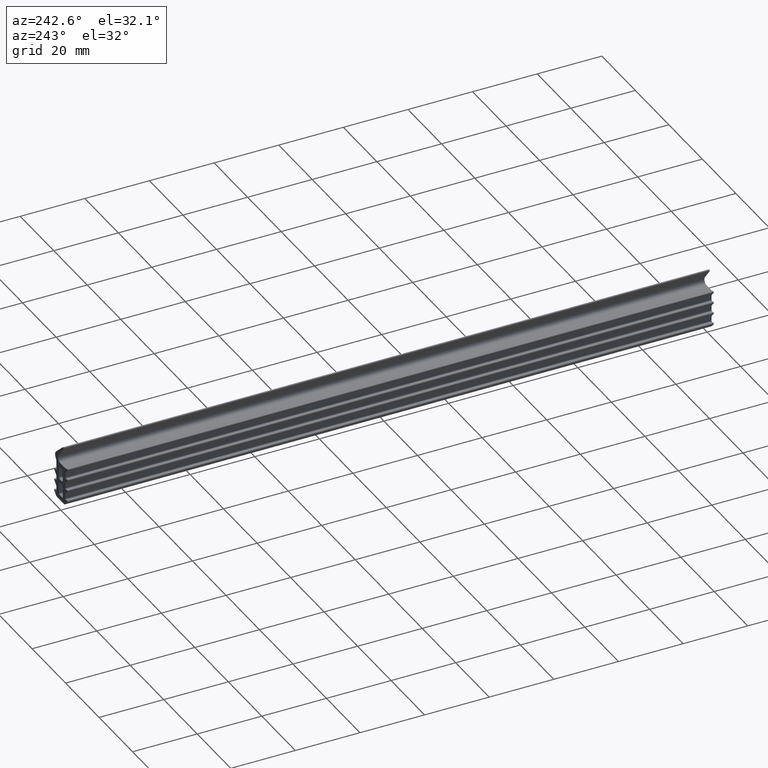
[diagram: clean part render]
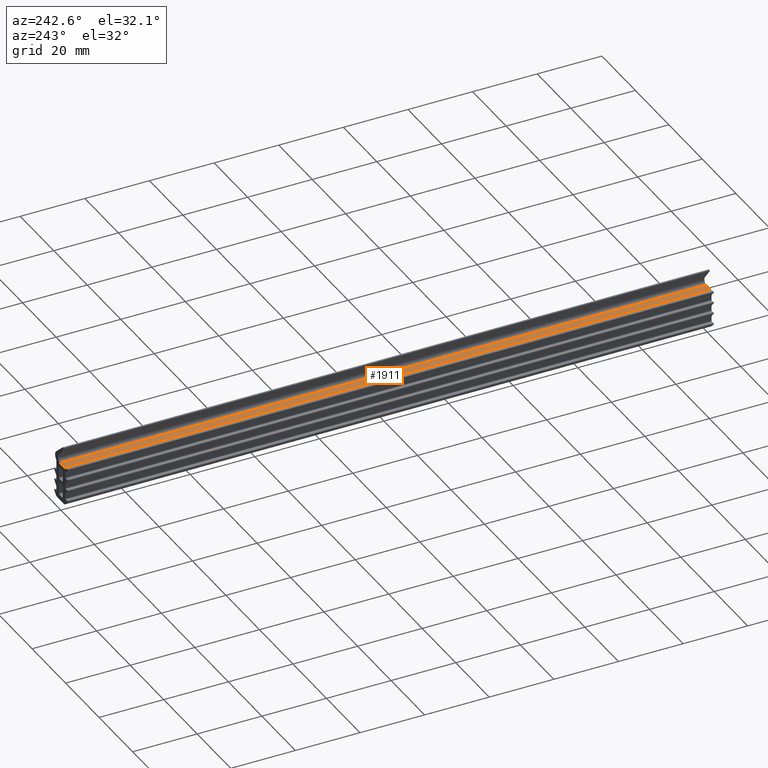
[diagram: same view with one face highlighted and labeled with its STEP entity id]
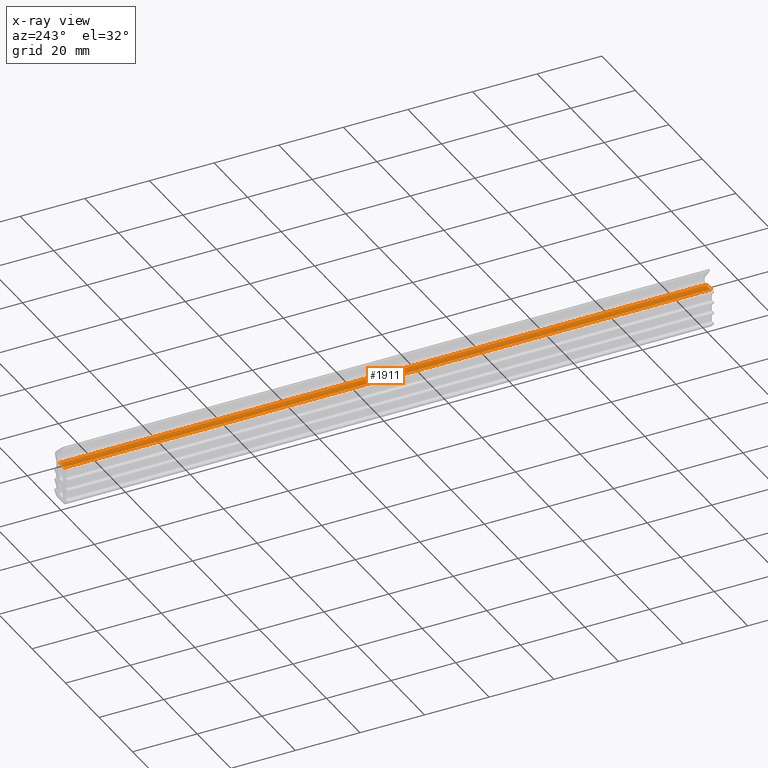
[diagram: x-ray of the same camera — body ghosted, the highlighted face saturated]
A machine part, auxiliary view. The second image highlights one B-rep face of the part: STEP entity #1911.
The next image is the same camera in x-ray: the body ghosted, the highlighted face saturated — about 0% of this face is hidden behind the body in this view.
In plain terms, the highlighted face is a freeform B-spline surface patch.
Its self-contained STEP definition (entity closure, byte-faithful):
#112=CARTESIAN_POINT('',(0.450000021373860,0.0,12.000000569969419));
#113=VERTEX_POINT('',#112);
#129=CARTESIAN_POINT('',(-2.178066201867605,0.0,12.000000569969400));
#130=VERTEX_POINT('',#129);
#131=CARTESIAN_POINT('',(-2.178066201867605,0.0,12.000000569969400));
#132=CARTESIAN_POINT('',(0.450000021373860,0.0,12.000000569969419));
#133=QUASI_UNIFORM_CURVE('',1,(#131,#132),.UNSPECIFIED.,.F.,.U.);
#134=EDGE_CURVE('',#130,#113,#133,.T.);
#1318=CARTESIAN_POINT('',(-2.178066201867605,200.0,12.000000569969400));
#1319=VERTEX_POINT('',#1318);
#1333=CARTESIAN_POINT('',(0.450000021373860,200.0,12.000000569969419));
#1334=VERTEX_POINT('',#1333);
#1335=CARTESIAN_POINT('',(-2.178066201867605,200.0,12.000000569969400));
#1336=CARTESIAN_POINT('',(0.450000021373860,200.0,12.000000569969419));
#1337=QUASI_UNIFORM_CURVE('',1,(#1335,#1336),.UNSPECIFIED.,.F.,.U.);
#1338=EDGE_CURVE('',#1319,#1334,#1337,.T.);
#1888=CARTESIAN_POINT('',(0.450000021373860,200.0,12.000000569969419));
#1889=CARTESIAN_POINT('',(0.450000021373860,0.0,12.000000569969419));
#1890=QUASI_UNIFORM_CURVE('',1,(#1888,#1889),.UNSPECIFIED.,.F.,.U.);
#1891=EDGE_CURVE('',#1334,#113,#1890,.T.);
#1896=CARTESIAN_POINT('',(0.581271924131069,-9.989999612361194,12.000000569969419));
#1897=CARTESIAN_POINT('',(-2.309338175115043,-9.989999612361194,12.000000569969419));
#1898=CARTESIAN_POINT('',(0.581271924131069,209.990004976779200,12.000000569969419));
#1899=CARTESIAN_POINT('',(-2.309338175115043,209.990004976779200,12.000000569969419));
#1900=B_SPLINE_SURFACE_WITH_KNOTS('',1,1,((#1896,#1898),(#1897,#1899)),.UNSPECIFIED.,.F.,.F.,.U.,(2,2),(2,2),(0.0,2.890610099246112),(0.0,219.980004589140410),.UNSPECIFIED.);
#1901=ORIENTED_EDGE('',*,*,#134,.T.);
#1902=ORIENTED_EDGE('',*,*,#1891,.F.);
#1903=ORIENTED_EDGE('',*,*,#1338,.F.);
#1904=CARTESIAN_POINT('',(-2.178066201867605,200.0,12.000000569969400));
#1905=CARTESIAN_POINT('',(-2.178066201867605,0.0,12.000000569969400));
#1906=QUASI_UNIFORM_CURVE('',1,(#1904,#1905),.UNSPECIFIED.,.F.,.U.);
#1907=EDGE_CURVE('',#1319,#130,#1906,.T.);
#1908=ORIENTED_EDGE('',*,*,#1907,.T.);
#1909=EDGE_LOOP('',(#1901,#1902,#1903,#1908));
#1910=FACE_OUTER_BOUND('',#1909,.T.);
#1911=ADVANCED_FACE('',(#1910),#1900,.F.);